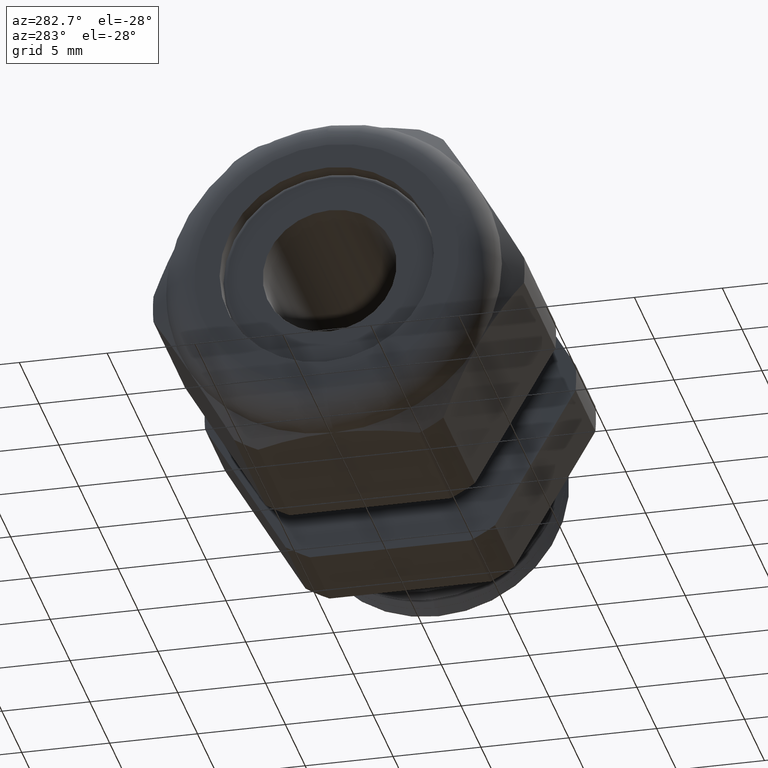
[diagram: clean part render]
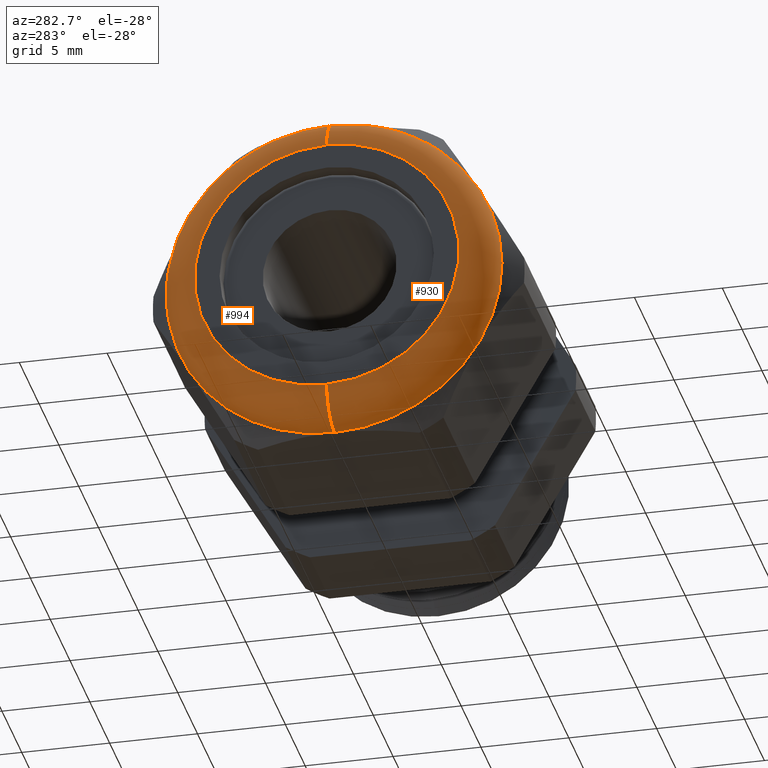
[diagram: same view with one multi-face feature highlighted, each face labeled with its STEP entity id]
A machine part, auxiliary view. The highlighted faces form ONE feature: a constant-radius fillet chain: 2 tangent blend faces with common blend radius 2 mm. The faces share edges in the B-rep.
Their STEP definitions:
[1] entity #994 (Torus):
#994 = ADVANCED_FACE ( 'NONE', ( #2862 ), #2861, .T. ) ;
#995 = EDGE_LOOP ( 'NONE', ( #996, #1039, #1042, #1045, #1048, #1051 ) ) ;
#996 = ORIENTED_EDGE ( 'NONE', *, *, #997, .F. ) ;
#997 = EDGE_CURVE ( 'NONE', #1037, #1038, #2855, .T. ) ;
#1037 = VERTEX_POINT ( 'NONE', #2970 ) ;
#1038 = VERTEX_POINT ( 'NONE', #2964 ) ;
#1039 = ORIENTED_EDGE ( 'NONE', *, *, #1040, .T. ) ;
#1040 = EDGE_CURVE ( 'NONE', #1037, #1041, #2963, .T. ) ;
#1041 = VERTEX_POINT ( 'NONE', #2958 ) ;
#1042 = ORIENTED_EDGE ( 'NONE', *, *, #1043, .F. ) ;
#1043 = EDGE_CURVE ( 'NONE', #1044, #1041, #2957, .T. ) ;
#1044 = VERTEX_POINT ( 'NONE', #2952 ) ;
#1045 = ORIENTED_EDGE ( 'NONE', *, *, #1046, .F. ) ;
#1046 = EDGE_CURVE ( 'NONE', #1047, #1044, #2950, .T. ) ;
#1047 = VERTEX_POINT ( 'NONE', #2951 ) ;
#1048 = ORIENTED_EDGE ( 'NONE', *, *, #1049, .F. ) ;
#1049 = EDGE_CURVE ( 'NONE', #1050, #1047, #3008, .T. ) ;
#1050 = VERTEX_POINT ( 'NONE', #3009 ) ;
#1051 = ORIENTED_EDGE ( 'NONE', *, *, #1052, .F. ) ;
#1052 = EDGE_CURVE ( 'NONE', #1038, #1050, #3003, .T. ) ;
#2853 = DIRECTION ( 'NONE',  ( 1.000000000000000000, 0.0000000000000000000, 0.0000000000000000000 ) ) ;
#2854 = AXIS2_PLACEMENT_3D ( 'NONE', #2860, #2853, #2912 ) ;
#2855 = CIRCLE ( 'NONE', #2854, 0.3750000000000000600 ) ;
#2856 = DIRECTION ( 'NONE',  ( 0.0000000000000000000, 0.0000000000000000000, 1.000000000000000000 ) ) ;
#2857 = DIRECTION ( 'NONE',  ( -1.000000000000000000, 0.0000000000000000000, 0.0000000000000000000 ) ) ;
#2858 = CARTESIAN_POINT ( 'NONE',  ( -1.061259842519684900, 0.0000000000000000000, 0.0000000000000000000 ) ) ;
#2859 = AXIS2_PLACEMENT_3D ( 'NONE', #2858, #2857, #2856 ) ;
#2860 = CARTESIAN_POINT ( 'NONE',  ( -1.061259842519684900, 0.0000000000000000000, 0.0000000000000000000 ) ) ;
#2861 = TOROIDAL_SURFACE ( 'NONE', #2859, 0.2962598425196850700, 0.07874015748031496000 ) ;
#2862 = FACE_OUTER_BOUND ( 'NONE', #995, .T. ) ;
#2912 = DIRECTION ( 'NONE',  ( 0.0000000000000000000, 0.0000000000000000000, -1.000000000000000000 ) ) ;
#2946 = DIRECTION ( 'NONE',  ( 0.0000000000000000000, 0.0000000000000000000, -1.000000000000000000 ) ) ;
#2947 = DIRECTION ( 'NONE',  ( 0.0000000000000000000, -1.000000000000000000, 0.0000000000000000000 ) ) ;
#2948 = CARTESIAN_POINT ( 'NONE',  ( -1.061259842519684900, 0.0000000000000000000, 0.2962598425196850700 ) ) ;
#2949 = AXIS2_PLACEMENT_3D ( 'NONE', #2948, #2947, #2946 ) ;
#2950 = CIRCLE ( 'NONE', #2949, 0.07874015748031496000 ) ;
#2951 = CARTESIAN_POINT ( 'NONE',  ( -1.061259842519684900, 0.0000000000000000000, 0.3749999999999999400 ) ) ;
#2952 = CARTESIAN_POINT ( 'NONE',  ( -1.139999999999999900, 0.0000000000000000000, 0.2962598425196850700 ) ) ;
#2953 = DIRECTION ( 'NONE',  ( 0.0000000000000000000, 0.0000000000000000000, 1.000000000000000000 ) ) ;
#2954 = DIRECTION ( 'NONE',  ( -1.000000000000000000, 0.0000000000000000000, 0.0000000000000000000 ) ) ;
#2955 = CARTESIAN_POINT ( 'NONE',  ( -1.139999999999999900, 0.0000000000000000000, 0.0000000000000000000 ) ) ;
#2956 = AXIS2_PLACEMENT_3D ( 'NONE', #2955, #2954, #2953 ) ;
#2957 = CIRCLE ( 'NONE', #2956, 0.2962598425196850700 ) ;
#2958 = CARTESIAN_POINT ( 'NONE',  ( -1.139999999999999900, 4.110281087689444600E-017, -0.2962598425196850700 ) ) ;
#2959 = DIRECTION ( 'NONE',  ( 0.0000000000000000000, -1.224646799147353500E-016, 1.000000000000000000 ) ) ;
#2960 = DIRECTION ( 'NONE',  ( 0.0000000000000000000, 1.000000000000000000, 1.224646799147353200E-016 ) ) ;
#2961 = CARTESIAN_POINT ( 'NONE',  ( -1.061259842519684900, 3.628136678576312500E-017, -0.2962598425196850700 ) ) ;
#2962 = AXIS2_PLACEMENT_3D ( 'NONE', #2961, #2960, #2959 ) ;
#2963 = CIRCLE ( 'NONE', #2962, 0.07874015748031496000 ) ;
#2964 = CARTESIAN_POINT ( 'NONE',  ( -1.061259842519684900, 0.3247595264191645600, -0.1874999999999998900 ) ) ;
#2970 = CARTESIAN_POINT ( 'NONE',  ( -1.061259842519684900, 0.0000000000000000000, -0.3749999999999999400 ) ) ;
#2999 = DIRECTION ( 'NONE',  ( 0.0000000000000000000, 0.0000000000000000000, -1.000000000000000000 ) ) ;
#3000 = DIRECTION ( 'NONE',  ( 1.000000000000000000, 0.0000000000000000000, 0.0000000000000000000 ) ) ;
#3001 = CARTESIAN_POINT ( 'NONE',  ( -1.061259842519684900, 0.0000000000000000000, 0.0000000000000000000 ) ) ;
#3002 = AXIS2_PLACEMENT_3D ( 'NONE', #3001, #3000, #2999 ) ;
#3003 = CIRCLE ( 'NONE', #3002, 0.3750000000000000600 ) ;
#3004 = DIRECTION ( 'NONE',  ( 0.0000000000000000000, 0.0000000000000000000, -1.000000000000000000 ) ) ;
#3005 = DIRECTION ( 'NONE',  ( 1.000000000000000000, 0.0000000000000000000, 0.0000000000000000000 ) ) ;
#3006 = CARTESIAN_POINT ( 'NONE',  ( -1.061259842519684900, 0.0000000000000000000, 0.0000000000000000000 ) ) ;
#3007 = AXIS2_PLACEMENT_3D ( 'NONE', #3006, #3005, #3004 ) ;
#3008 = CIRCLE ( 'NONE', #3007, 0.3750000000000000600 ) ;
#3009 = CARTESIAN_POINT ( 'NONE',  ( -1.061259842519684900, 0.3247595264191644500, 0.1875000000000000600 ) ) ;
[2] entity #930 (Torus):
#270 = VERTEX_POINT ( 'NONE', #1648 ) ;
#420 = VERTEX_POINT ( 'NONE', #1979 ) ;
#498 = EDGE_CURVE ( 'NONE', #1041, #1044, #2087, .T. ) ;
#857 = ORIENTED_EDGE ( 'NONE', *, *, #1040, .F. ) ;
#858 = ORIENTED_EDGE ( 'NONE', *, *, #859, .F. ) ;
#859 = EDGE_CURVE ( 'NONE', #270, #1037, #2672, .T. ) ;
#860 = ORIENTED_EDGE ( 'NONE', *, *, #861, .F. ) ;
#861 = EDGE_CURVE ( 'NONE', #420, #270, #2667, .T. ) ;
#912 = ORIENTED_EDGE ( 'NONE', *, *, #913, .F. ) ;
#913 = EDGE_CURVE ( 'NONE', #1047, #420, #2727, .T. ) ;
#914 = ORIENTED_EDGE ( 'NONE', *, *, #1046, .T. ) ;
#915 = ORIENTED_EDGE ( 'NONE', *, *, #498, .F. ) ;
#930 = ADVANCED_FACE ( 'NONE', ( #2765 ), #2764, .T. ) ;
#931 = EDGE_LOOP ( 'NONE', ( #857, #858, #860, #912, #914, #915 ) ) ;
#1037 = VERTEX_POINT ( 'NONE', #2970 ) ;
#1040 = EDGE_CURVE ( 'NONE', #1037, #1041, #2963, .T. ) ;
#1041 = VERTEX_POINT ( 'NONE', #2958 ) ;
#1044 = VERTEX_POINT ( 'NONE', #2952 ) ;
#1046 = EDGE_CURVE ( 'NONE', #1047, #1044, #2950, .T. ) ;
#1047 = VERTEX_POINT ( 'NONE', #2951 ) ;
#1648 = CARTESIAN_POINT ( 'NONE',  ( -1.061259842519684900, -0.3247595264191644500, -0.1875000000000000600 ) ) ;
#1979 = CARTESIAN_POINT ( 'NONE',  ( -1.061259842519684900, -0.3247595264191645600, 0.1874999999999999400 ) ) ;
#2083 = DIRECTION ( 'NONE',  ( 0.0000000000000000000, 0.0000000000000000000, 1.000000000000000000 ) ) ;
#2084 = DIRECTION ( 'NONE',  ( -1.000000000000000000, 0.0000000000000000000, 0.0000000000000000000 ) ) ;
#2085 = CARTESIAN_POINT ( 'NONE',  ( -1.139999999999999900, 0.0000000000000000000, 0.0000000000000000000 ) ) ;
#2086 = AXIS2_PLACEMENT_3D ( 'NONE', #2085, #2084, #2083 ) ;
#2087 = CIRCLE ( 'NONE', #2086, 0.2962598425196850700 ) ;
#2663 = DIRECTION ( 'NONE',  ( 0.0000000000000000000, 0.0000000000000000000, -1.000000000000000000 ) ) ;
#2664 = DIRECTION ( 'NONE',  ( 1.000000000000000000, 0.0000000000000000000, 0.0000000000000000000 ) ) ;
#2665 = CARTESIAN_POINT ( 'NONE',  ( -1.061259842519684900, 0.0000000000000000000, 0.0000000000000000000 ) ) ;
#2666 = AXIS2_PLACEMENT_3D ( 'NONE', #2665, #2664, #2663 ) ;
#2667 = CIRCLE ( 'NONE', #2666, 0.3750000000000000600 ) ;
#2668 = DIRECTION ( 'NONE',  ( 0.0000000000000000000, 0.0000000000000000000, -1.000000000000000000 ) ) ;
#2669 = DIRECTION ( 'NONE',  ( 1.000000000000000000, 0.0000000000000000000, 0.0000000000000000000 ) ) ;
#2670 = CARTESIAN_POINT ( 'NONE',  ( -1.061259842519684900, 0.0000000000000000000, 0.0000000000000000000 ) ) ;
#2671 = AXIS2_PLACEMENT_3D ( 'NONE', #2670, #2669, #2668 ) ;
#2672 = CIRCLE ( 'NONE', #2671, 0.3750000000000000600 ) ;
#2727 = CIRCLE ( 'NONE', #2788, 0.3750000000000000600 ) ;
#2761 = DIRECTION ( 'NONE',  ( 0.0000000000000000000, 0.0000000000000000000, 1.000000000000000000 ) ) ;
#2762 = DIRECTION ( 'NONE',  ( -1.000000000000000000, 0.0000000000000000000, 0.0000000000000000000 ) ) ;
#2763 = AXIS2_PLACEMENT_3D ( 'NONE', #2769, #2762, #2761 ) ;
#2764 = TOROIDAL_SURFACE ( 'NONE', #2763, 0.2962598425196850700, 0.07874015748031496000 ) ;
#2765 = FACE_OUTER_BOUND ( 'NONE', #931, .T. ) ;
#2769 = CARTESIAN_POINT ( 'NONE',  ( -1.061259842519684900, 0.0000000000000000000, 0.0000000000000000000 ) ) ;
#2785 = DIRECTION ( 'NONE',  ( 0.0000000000000000000, 0.0000000000000000000, -1.000000000000000000 ) ) ;
#2786 = DIRECTION ( 'NONE',  ( 1.000000000000000000, 0.0000000000000000000, 0.0000000000000000000 ) ) ;
#2787 = CARTESIAN_POINT ( 'NONE',  ( -1.061259842519684900, 0.0000000000000000000, 0.0000000000000000000 ) ) ;
#2788 = AXIS2_PLACEMENT_3D ( 'NONE', #2787, #2786, #2785 ) ;
#2946 = DIRECTION ( 'NONE',  ( 0.0000000000000000000, 0.0000000000000000000, -1.000000000000000000 ) ) ;
#2947 = DIRECTION ( 'NONE',  ( 0.0000000000000000000, -1.000000000000000000, 0.0000000000000000000 ) ) ;
#2948 = CARTESIAN_POINT ( 'NONE',  ( -1.061259842519684900, 0.0000000000000000000, 0.2962598425196850700 ) ) ;
#2949 = AXIS2_PLACEMENT_3D ( 'NONE', #2948, #2947, #2946 ) ;
#2950 = CIRCLE ( 'NONE', #2949, 0.07874015748031496000 ) ;
#2951 = CARTESIAN_POINT ( 'NONE',  ( -1.061259842519684900, 0.0000000000000000000, 0.3749999999999999400 ) ) ;
#2952 = CARTESIAN_POINT ( 'NONE',  ( -1.139999999999999900, 0.0000000000000000000, 0.2962598425196850700 ) ) ;
#2958 = CARTESIAN_POINT ( 'NONE',  ( -1.139999999999999900, 4.110281087689444600E-017, -0.2962598425196850700 ) ) ;
#2959 = DIRECTION ( 'NONE',  ( 0.0000000000000000000, -1.224646799147353500E-016, 1.000000000000000000 ) ) ;
#2960 = DIRECTION ( 'NONE',  ( 0.0000000000000000000, 1.000000000000000000, 1.224646799147353200E-016 ) ) ;
#2961 = CARTESIAN_POINT ( 'NONE',  ( -1.061259842519684900, 3.628136678576312500E-017, -0.2962598425196850700 ) ) ;
#2962 = AXIS2_PLACEMENT_3D ( 'NONE', #2961, #2960, #2959 ) ;
#2963 = CIRCLE ( 'NONE', #2962, 0.07874015748031496000 ) ;
#2970 = CARTESIAN_POINT ( 'NONE',  ( -1.061259842519684900, 0.0000000000000000000, -0.3749999999999999400 ) ) ;